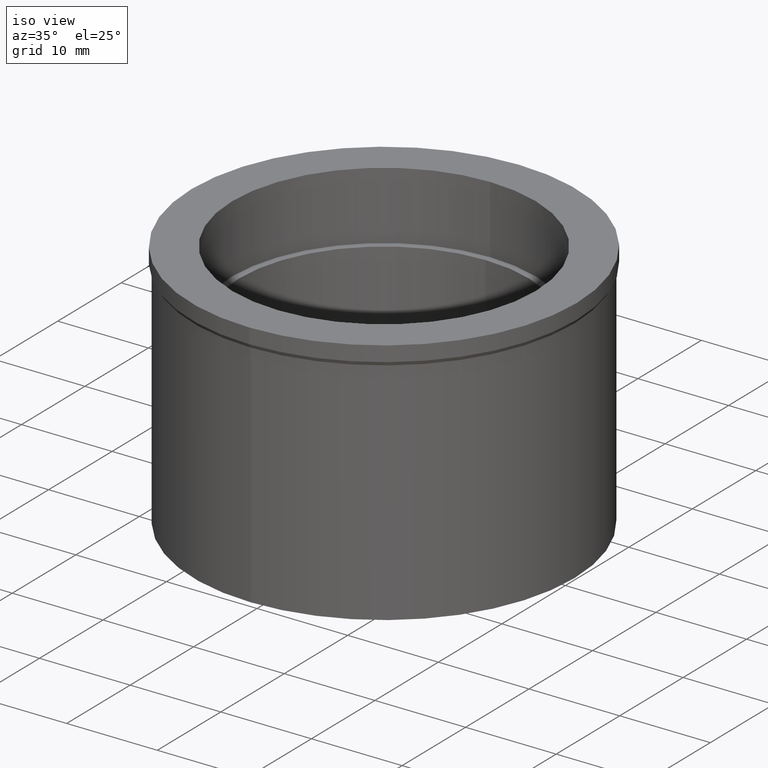
[diagram: clean part render]
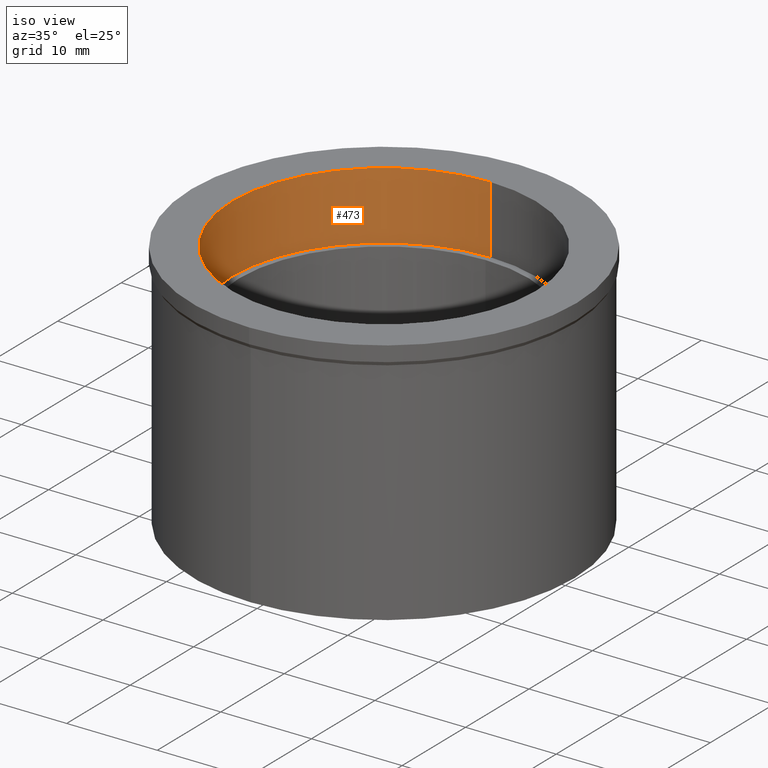
[diagram: same view with one face highlighted and labeled with its STEP entity id]
A machine part, iso view. The second image highlights one B-rep face of the part: STEP entity #473.
In plain terms, the highlighted cylindrical surface (partial cylindrical patch) has radius 16.75 mm, axis along (0, 0, -1).
Its self-contained STEP definition (entity closure, byte-faithful):
#17=DIRECTION('',(0.E0,0.E0,1.E0));
#18=VECTOR('',#17,7.5E0);
#19=CARTESIAN_POINT('',(0.E0,1.675E1,-7.5E0));
#20=LINE('',#19,#18);
#25=DIRECTION('',(0.E0,0.E0,1.E0));
#26=VECTOR('',#25,7.5E0);
#27=CARTESIAN_POINT('',(0.E0,-1.675E1,-7.5E0));
#28=LINE('',#27,#26);
#32=CARTESIAN_POINT('',(0.E0,0.E0,-7.5E0));
#33=DIRECTION('',(0.E0,0.E0,-1.E0));
#34=DIRECTION('',(0.E0,-1.E0,0.E0));
#35=AXIS2_PLACEMENT_3D('',#32,#33,#34);
#376=CARTESIAN_POINT('',(0.E0,0.E0,0.E0));
#377=DIRECTION('',(0.E0,0.E0,1.E0));
#378=DIRECTION('',(0.E0,1.E0,0.E0));
#379=AXIS2_PLACEMENT_3D('',#376,#377,#378);
#384=CARTESIAN_POINT('',(0.E0,1.675E1,-7.5E0));
#385=CARTESIAN_POINT('',(0.E0,1.675E1,0.E0));
#386=VERTEX_POINT('',#384);
#387=VERTEX_POINT('',#385);
#388=CARTESIAN_POINT('',(0.E0,-1.675E1,0.E0));
#389=VERTEX_POINT('',#388);
#390=CARTESIAN_POINT('',(0.E0,-1.675E1,-7.5E0));
#391=VERTEX_POINT('',#390);
#460=CARTESIAN_POINT('',(0.E0,0.E0,1.375E0));
#461=DIRECTION('',(0.E0,0.E0,-1.E0));
#462=DIRECTION('',(0.E0,-1.E0,0.E0));
#463=AXIS2_PLACEMENT_3D('',#460,#461,#462);
#464=CYLINDRICAL_SURFACE('',#463,1.675E1);
#465=ORIENTED_EDGE('',*,*,#449,.F.);
#467=ORIENTED_EDGE('',*,*,#466,.F.);
#468=ORIENTED_EDGE('',*,*,#453,.T.);
#470=ORIENTED_EDGE('',*,*,#469,.F.);
#471=EDGE_LOOP('',(#465,#467,#468,#470));
#472=FACE_OUTER_BOUND('',#471,.F.);
#36=CIRCLE('',#35,1.675E1);
#380=CIRCLE('',#379,1.675E1);
#449=EDGE_CURVE('',#386,#387,#20,.T.);
#453=EDGE_CURVE('',#391,#389,#28,.T.);
#466=EDGE_CURVE('',#391,#386,#36,.T.);
#469=EDGE_CURVE('',#387,#389,#380,.T.);
#473=ADVANCED_FACE('',(#472),#464,.F.);